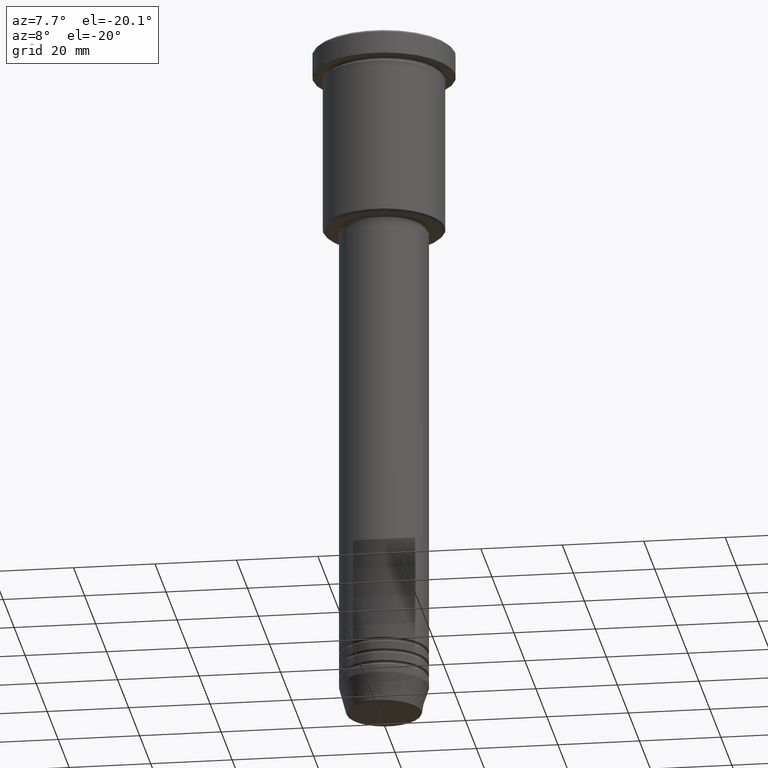
[diagram: clean part render]
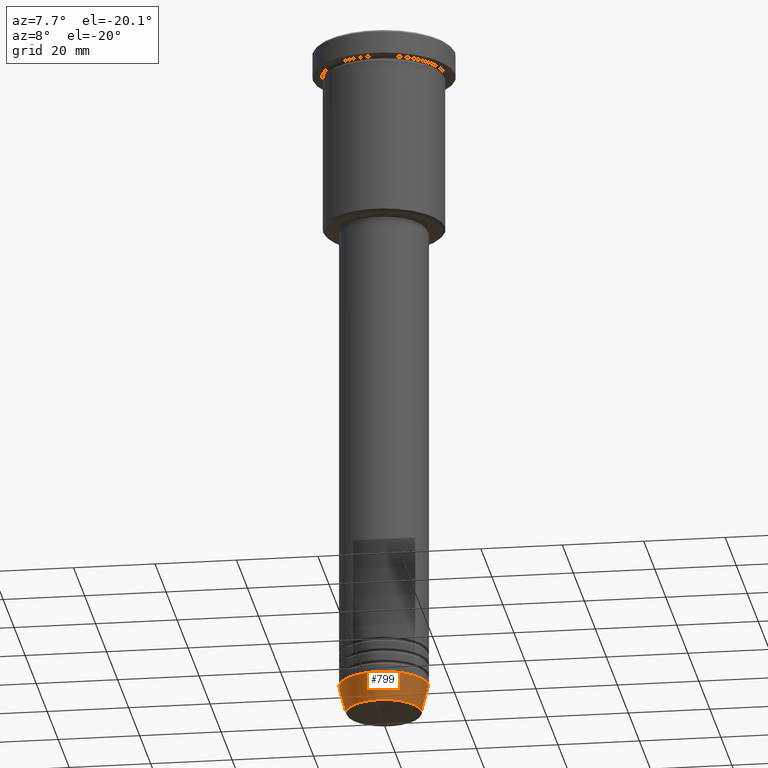
[diagram: same view with one face highlighted and labeled with its STEP entity id]
A machine part, auxiliary view. The second image highlights one B-rep face of the part: STEP entity #799.
In plain terms, the highlighted conical surface has half-angle 15 deg.
Its self-contained STEP definition (entity closure, byte-faithful):
#8 = AXIS2_PLACEMENT_3D ( 'NONE', #122, #953, #126 ) ;
#55 = CARTESIAN_POINT ( 'NONE',  ( 11.00000000000000000, 0.000000000000000000, -164.0000000000000000 ) ) ;
#79 = ORIENTED_EDGE ( 'NONE', *, *, #153, .F. ) ;
#122 = CARTESIAN_POINT ( 'NONE',  ( 0.000000000000000000, 0.000000000000000000, -164.0000000000000000 ) ) ;
#126 = DIRECTION ( 'NONE',  ( 1.000000000000000000, 0.000000000000000000, 0.000000000000000000 ) ) ;
#153 = EDGE_CURVE ( 'NONE', #632, #728, #171, .T. ) ;
#171 = CIRCLE ( 'NONE', #680, 11.00000000000000000 ) ;
#173 = VECTOR ( 'NONE', #265, 1000.000000000000000 ) ;
#194 = CARTESIAN_POINT ( 'NONE',  ( -9.223655072137194821, 1.238341722557647596E-15, -170.6294095225512422 ) ) ;
#202 = DIRECTION ( 'NONE',  ( 1.000000000000000000, 0.000000000000000000, 0.000000000000000000 ) ) ;
#232 = VECTOR ( 'NONE', #789, 1000.000000000000000 ) ;
#252 = CARTESIAN_POINT ( 'NONE',  ( -11.00000000000000000, 1.347111479062088405E-15, -164.0000000000000000 ) ) ;
#265 = DIRECTION ( 'NONE',  ( -0.2588190451025213501, 3.169619151431772337E-17, 0.9659258262890680902 ) ) ;
#269 = ORIENTED_EDGE ( 'NONE', *, *, #677, .T. ) ;
#276 = VERTEX_POINT ( 'NONE', #361 ) ;
#344 = LINE ( 'NONE', #435, #173 ) ;
#361 = CARTESIAN_POINT ( 'NONE',  ( 9.223655072137194821, 0.000000000000000000, -170.6294095225512422 ) ) ;
#388 = CARTESIAN_POINT ( 'NONE',  ( 0.000000000000000000, 0.000000000000000000, -164.0000000000000000 ) ) ;
#409 = DIRECTION ( 'NONE',  ( -0.000000000000000000, -0.000000000000000000, 1.000000000000000000 ) ) ;
#435 = CARTESIAN_POINT ( 'NONE',  ( -11.00000000000000000, 1.347111479062088405E-15, -164.0000000000000000 ) ) ;
#448 = DIRECTION ( 'NONE',  ( -0.000000000000000000, -0.000000000000000000, 1.000000000000000000 ) ) ;
#530 = AXIS2_PLACEMENT_3D ( 'NONE', #878, #409, #967 ) ;
#613 = ORIENTED_EDGE ( 'NONE', *, *, #754, .F. ) ;
#632 = VERTEX_POINT ( 'NONE', #252 ) ;
#677 = EDGE_CURVE ( 'NONE', #276, #728, #886, .T. ) ;
#680 = AXIS2_PLACEMENT_3D ( 'NONE', #388, #448, #202 ) ;
#728 = VERTEX_POINT ( 'NONE', #951 ) ;
#746 = EDGE_LOOP ( 'NONE', ( #613, #860, #269, #79 ) ) ;
#754 = EDGE_CURVE ( 'NONE', #845, #632, #344, .T. ) ;
#789 = DIRECTION ( 'NONE',  ( 0.2588190451025213501, 0.000000000000000000, 0.9659258262890680902 ) ) ;
#799 = ADVANCED_FACE ( 'NONE', ( #945 ), #992, .T. ) ;
#845 = VERTEX_POINT ( 'NONE', #194 ) ;
#860 = ORIENTED_EDGE ( 'NONE', *, *, #1037, .T. ) ;
#878 = CARTESIAN_POINT ( 'NONE',  ( 0.000000000000000000, 0.000000000000000000, -170.6294095225512422 ) ) ;
#886 = LINE ( 'NONE', #55, #232 ) ;
#896 = CIRCLE ( 'NONE', #530, 9.223655072137194821 ) ;
#945 = FACE_OUTER_BOUND ( 'NONE', #746, .T. ) ;
#951 = CARTESIAN_POINT ( 'NONE',  ( 11.00000000000000000, 0.000000000000000000, -164.0000000000000000 ) ) ;
#953 = DIRECTION ( 'NONE',  ( -0.000000000000000000, -0.000000000000000000, 1.000000000000000000 ) ) ;
#967 = DIRECTION ( 'NONE',  ( 1.000000000000000000, 0.000000000000000000, 0.000000000000000000 ) ) ;
#992 = CONICAL_SURFACE ( 'NONE', #8, 11.00000000000000000, 0.2617993877991500740 ) ;
#1037 = EDGE_CURVE ( 'NONE', #845, #276, #896, .T. ) ;